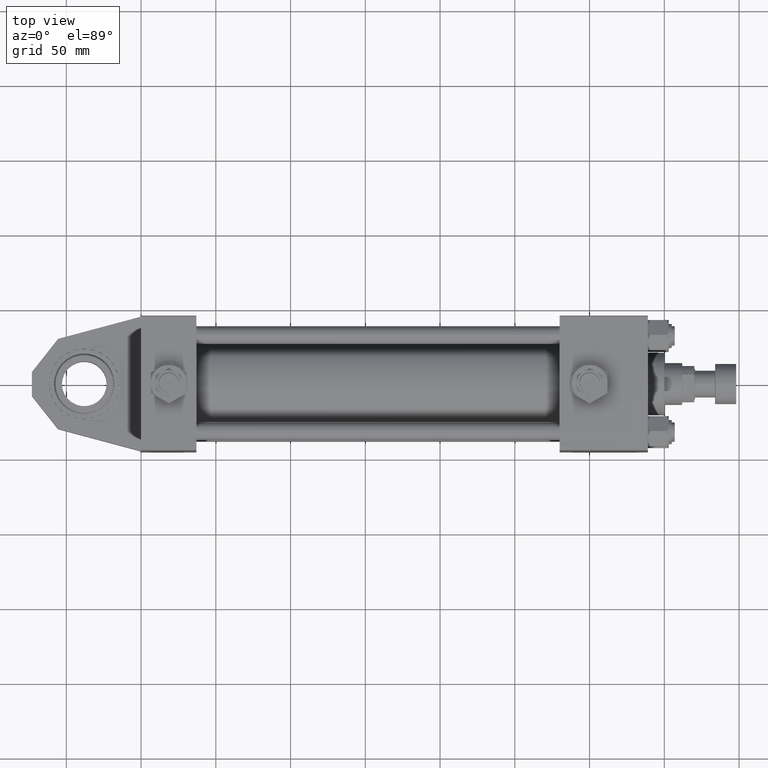
[diagram: clean part render]
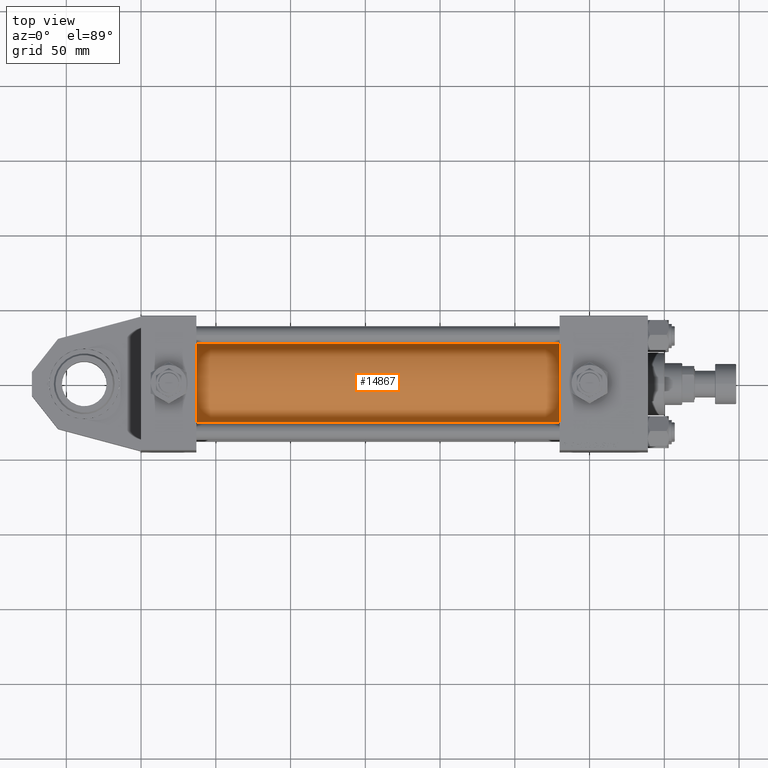
[diagram: same view with one face highlighted and labeled with its STEP entity id]
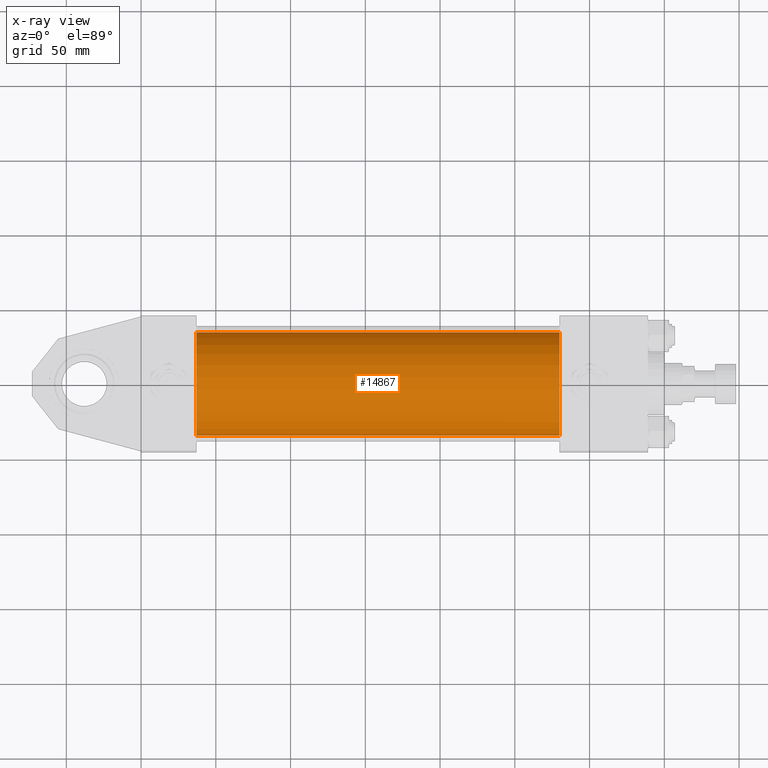
[diagram: x-ray of the same camera — body ghosted, the highlighted face saturated]
A machine part, top view. The second image highlights one B-rep face of the part: STEP entity #14867.
The next image is the same camera in x-ray: the body ghosted, the highlighted face saturated — about 0% of this face is hidden behind the body in this view.
In plain terms, the highlighted cylindrical surface (partial cylindrical patch) has radius 34.5 mm, axis along (-1, 0, -0).
Its self-contained STEP definition (entity closure, byte-faithful):
#683 = VERTEX_POINT ( 'NONE', #5654 ) ;
#1287 = FACE_OUTER_BOUND ( 'NONE', #44238, .T. ) ;
#5290 = DIRECTION ( 'NONE',  ( 0.000000000000000000, 0.000000000000000000, 1.000000000000000000 ) ) ;
#5654 = CARTESIAN_POINT ( 'NONE',  ( 37.00000000000000711, 1.622946243093158675E-15, -34.50000000000000000 ) ) ;
#7386 = CARTESIAN_POINT ( 'NONE',  ( 279.9999999999999432, 1.622946243093158675E-15, -34.50000000000000000 ) ) ;
#7619 = CIRCLE ( 'NONE', #50138, 34.50000000000000000 ) ;
#8125 = VERTEX_POINT ( 'NONE', #33501 ) ;
#9715 = DIRECTION ( 'NONE',  ( 0.000000000000000000, 0.000000000000000000, -1.000000000000000000 ) ) ;
#13915 = VECTOR ( 'NONE', #15329, 1000.000000000000000 ) ;
#14867 = ADVANCED_FACE ( 'NONE', ( #1287 ), #37262, .T. ) ;
#15329 = DIRECTION ( 'NONE',  ( -1.000000000000000000, -0.000000000000000000, -0.000000000000000000 ) ) ;
#15556 = EDGE_CURVE ( 'NONE', #683, #39841, #25654, .T. ) ;
#17168 = DIRECTION ( 'NONE',  ( 1.000000000000000000, 0.000000000000000000, 0.000000000000000000 ) ) ;
#17975 = CARTESIAN_POINT ( 'NONE',  ( 37.00000000000000711, -2.602085213965210642E-15, 34.50000000000000000 ) ) ;
#17995 = AXIS2_PLACEMENT_3D ( 'NONE', #45786, #41787, #5290 ) ;
#19374 = LINE ( 'NONE', #7386, #25923 ) ;
#20112 = CARTESIAN_POINT ( 'NONE',  ( 279.9999999999999432, -2.602085213965210642E-15, 34.50000000000000000 ) ) ;
#23631 = DIRECTION ( 'NONE',  ( -1.000000000000000000, -0.000000000000000000, -0.000000000000000000 ) ) ;
#23882 = DIRECTION ( 'NONE',  ( 0.000000000000000000, 0.000000000000000000, 1.000000000000000000 ) ) ;
#25635 = EDGE_CURVE ( 'NONE', #8125, #683, #19374, .T. ) ;
#25654 = CIRCLE ( 'NONE', #25702, 34.50000000000000000 ) ;
#25702 = AXIS2_PLACEMENT_3D ( 'NONE', #31346, #48123, #23882 ) ;
#25923 = VECTOR ( 'NONE', #23631, 1000.000000000000000 ) ;
#26688 = CARTESIAN_POINT ( 'NONE',  ( 279.9999999999999432, -2.602085213965210642E-15, 34.50000000000000000 ) ) ;
#30483 = CARTESIAN_POINT ( 'NONE',  ( 279.9999999999999432, -2.602085213965210642E-15, 0.000000000000000000 ) ) ;
#31057 = VERTEX_POINT ( 'NONE', #26688 ) ;
#31346 = CARTESIAN_POINT ( 'NONE',  ( 37.00000000000000711, -2.602085213965210642E-15, 0.000000000000000000 ) ) ;
#33501 = CARTESIAN_POINT ( 'NONE',  ( 279.9999999999999432, 1.622946243093158675E-15, -34.50000000000000000 ) ) ;
#35836 = LINE ( 'NONE', #20112, #13915 ) ;
#37262 = CYLINDRICAL_SURFACE ( 'NONE', #17995, 34.50000000000000000 ) ;
#39780 = EDGE_CURVE ( 'NONE', #8125, #31057, #7619, .T. ) ;
#39841 = VERTEX_POINT ( 'NONE', #17975 ) ;
#40172 = ORIENTED_EDGE ( 'NONE', *, *, #39780, .F. ) ;
#40878 = ORIENTED_EDGE ( 'NONE', *, *, #51019, .F. ) ;
#41787 = DIRECTION ( 'NONE',  ( -1.000000000000000000, -0.000000000000000000, -0.000000000000000000 ) ) ;
#44238 = EDGE_LOOP ( 'NONE', ( #40172, #51388, #47839, #40878 ) ) ;
#45786 = CARTESIAN_POINT ( 'NONE',  ( 279.9999999999999432, -2.602085213965210642E-15, 0.000000000000000000 ) ) ;
#47839 = ORIENTED_EDGE ( 'NONE', *, *, #15556, .T. ) ;
#48123 = DIRECTION ( 'NONE',  ( 1.000000000000000000, -0.000000000000000000, 0.000000000000000000 ) ) ;
#50138 = AXIS2_PLACEMENT_3D ( 'NONE', #30483, #17168, #9715 ) ;
#51019 = EDGE_CURVE ( 'NONE', #31057, #39841, #35836, .T. ) ;
#51388 = ORIENTED_EDGE ( 'NONE', *, *, #25635, .T. ) ;